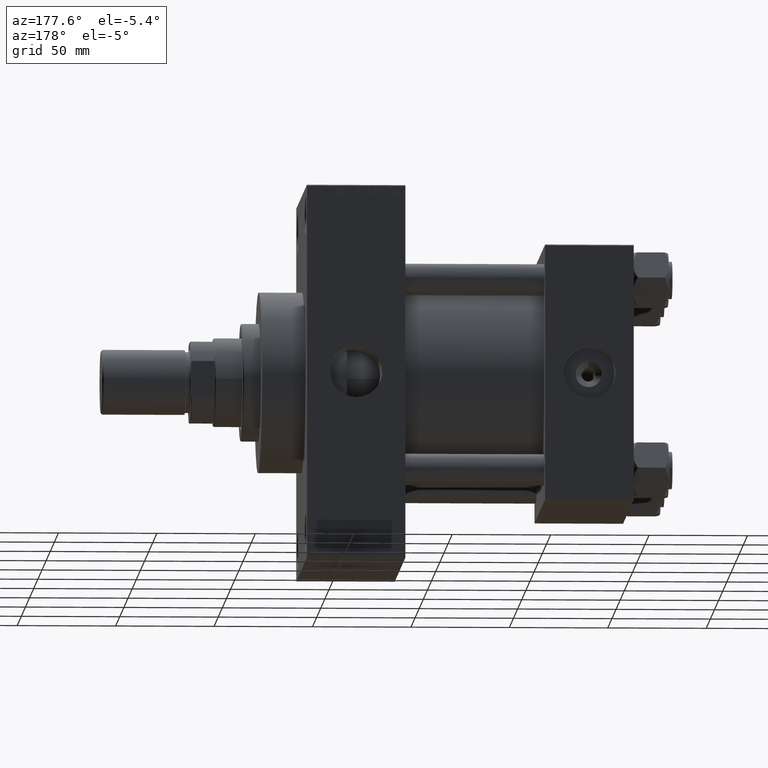
[diagram: clean part render]
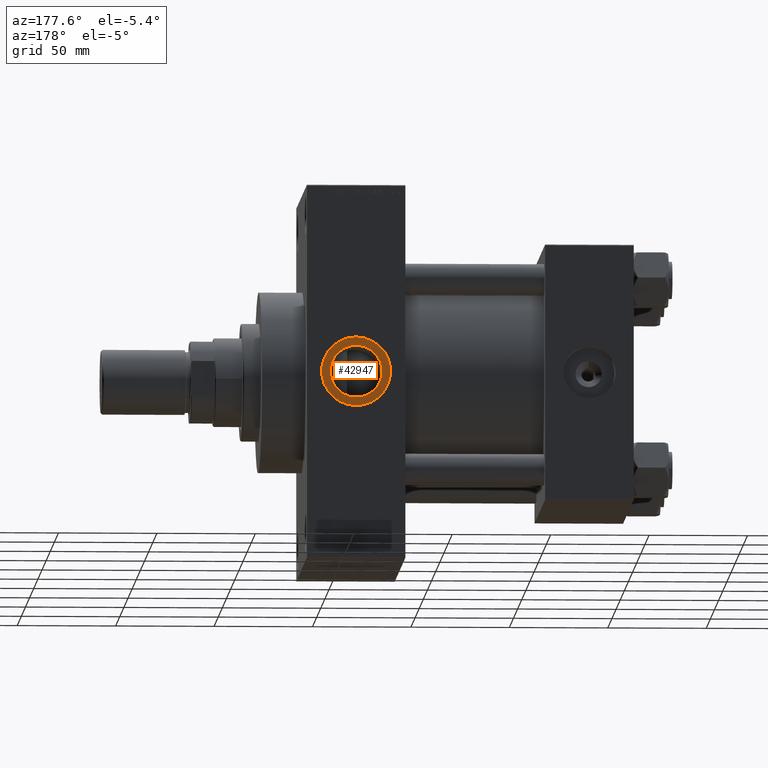
[diagram: same view with one face highlighted and labeled with its STEP entity id]
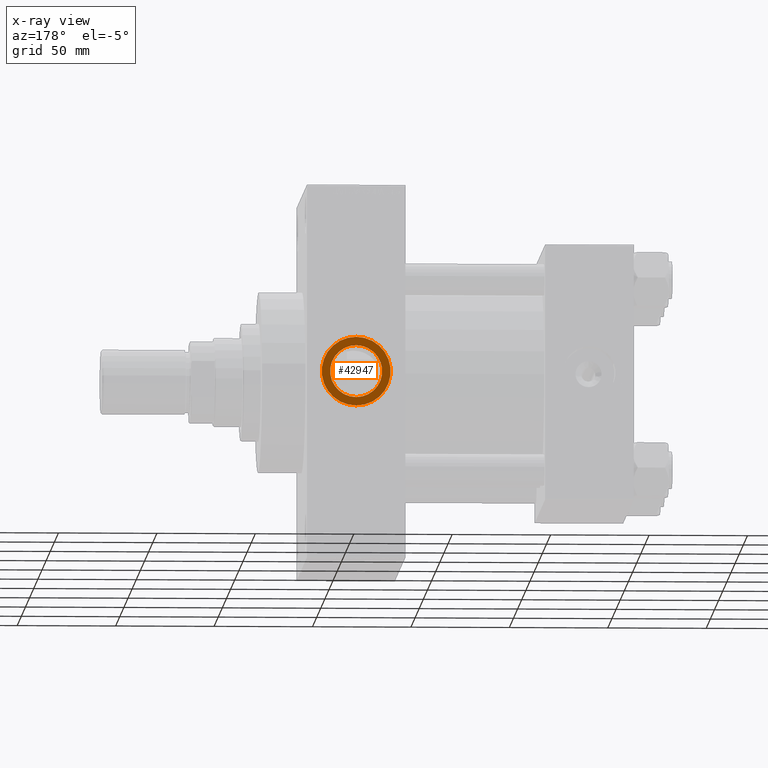
[diagram: x-ray of the same camera — body ghosted, the highlighted face saturated]
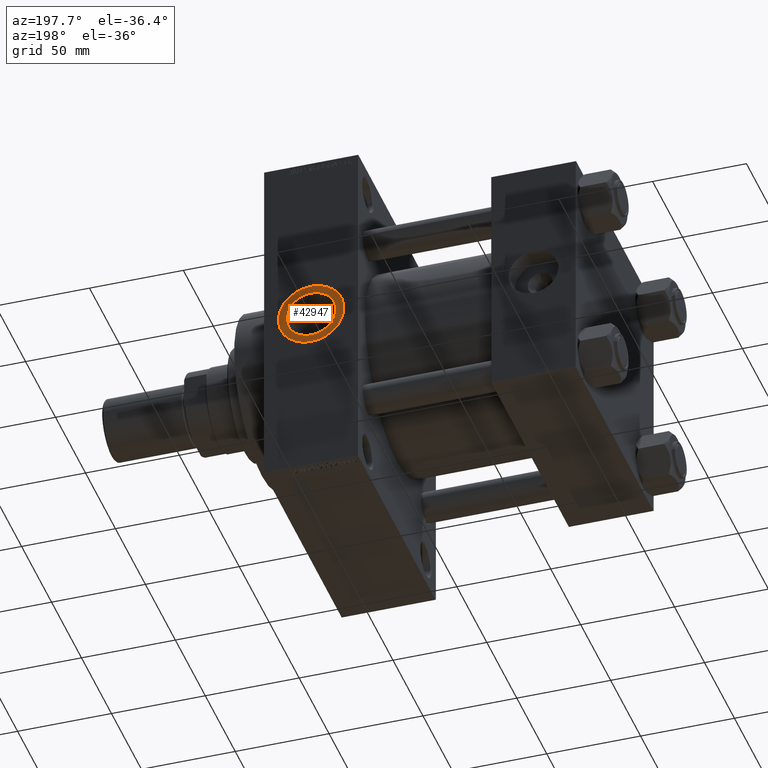
[diagram: same view with one face highlighted and labeled with its STEP entity id]
A machine part, auxiliary view. The second image highlights one B-rep face of the part: STEP entity #42947.
The next image is the same camera in x-ray: the body ghosted, the highlighted face saturated — about 0% of this face is hidden behind the body in this view.
A second angle (auxiliary view) of the same face is appended — the face is thin or edge-on in the first view.
In plain terms, the highlighted planar face has unit normal (0, 1, 0).
Its self-contained STEP definition (entity closure, byte-faithful):
#12 = DIRECTION ( 'NONE',  ( 0.000000000000000000, 0.000000000000000000, 1.000000000000000000 ) ) ;
#597 = DIRECTION ( 'NONE',  ( 0.000000000000000000, 1.000000000000000000, 0.000000000000000000 ) ) ;
#1042 = VERTEX_POINT ( 'NONE', #16623 ) ;
#1772 = PLANE ( 'NONE',  #17528 ) ;
#4819 = FACE_BOUND ( 'NONE', #14539, .T. ) ;
#5913 = CARTESIAN_POINT ( 'NONE',  ( 141.0000000000000000, 64.79999999999996874, 4.747664250041786301E-15 ) ) ;
#7474 = CARTESIAN_POINT ( 'NONE',  ( 141.0000000000000000, 64.79999999999996874, 4.747664250041786301E-15 ) ) ;
#8107 = VERTEX_POINT ( 'NONE', #35325 ) ;
#8881 = FACE_OUTER_BOUND ( 'NONE', #20720, .T. ) ;
#9408 = DIRECTION ( 'NONE',  ( 0.000000000000000000, 1.000000000000000000, 0.000000000000000000 ) ) ;
#10175 = DIRECTION ( 'NONE',  ( 0.000000000000000000, 0.000000000000000000, 1.000000000000000000 ) ) ;
#10549 = EDGE_CURVE ( 'NONE', #37953, #31400, #21595, .T. ) ;
#10667 = EDGE_CURVE ( 'NONE', #31400, #37953, #17564, .T. ) ;
#12863 = ORIENTED_EDGE ( 'NONE', *, *, #10667, .F. ) ;
#14539 = EDGE_LOOP ( 'NONE', ( #12863, #40482 ) ) ;
#14996 = DIRECTION ( 'NONE',  ( 0.000000000000000000, 0.000000000000000000, 1.000000000000000000 ) ) ;
#15152 = AXIS2_PLACEMENT_3D ( 'NONE', #49048, #29738, #14996 ) ;
#16071 = DIRECTION ( 'NONE',  ( 0.000000000000000000, 0.000000000000000000, 1.000000000000000000 ) ) ;
#16623 = CARTESIAN_POINT ( 'NONE',  ( 141.0000000000000000, 64.79999999999996874, -17.49999999999998934 ) ) ;
#17528 = AXIS2_PLACEMENT_3D ( 'NONE', #36078, #24131, #20066 ) ;
#17564 = CIRCLE ( 'NONE', #15152, 13.22000000000001307 ) ;
#18365 = AXIS2_PLACEMENT_3D ( 'NONE', #48799, #9408, #10175 ) ;
#20066 = DIRECTION ( 'NONE',  ( 0.000000000000000000, -0.000000000000000000, 1.000000000000000000 ) ) ;
#20720 = EDGE_LOOP ( 'NONE', ( #33961, #48350 ) ) ;
#21595 = CIRCLE ( 'NONE', #18365, 13.22000000000001307 ) ;
#24098 = DIRECTION ( 'NONE',  ( 0.000000000000000000, 1.000000000000000000, 0.000000000000000000 ) ) ;
#24131 = DIRECTION ( 'NONE',  ( 0.000000000000000000, 1.000000000000000000, 0.000000000000000000 ) ) ;
#26180 = AXIS2_PLACEMENT_3D ( 'NONE', #5913, #24098, #12 ) ;
#27770 = CIRCLE ( 'NONE', #36699, 17.49999999999999289 ) ;
#29738 = DIRECTION ( 'NONE',  ( 0.000000000000000000, 1.000000000000000000, 0.000000000000000000 ) ) ;
#30395 = EDGE_CURVE ( 'NONE', #1042, #8107, #27770, .T. ) ;
#31400 = VERTEX_POINT ( 'NONE', #33859 ) ;
#32058 = EDGE_CURVE ( 'NONE', #8107, #1042, #38391, .T. ) ;
#33859 = CARTESIAN_POINT ( 'NONE',  ( 141.0000000000000000, 64.79999999999996874, 13.22000000000001840 ) ) ;
#33961 = ORIENTED_EDGE ( 'NONE', *, *, #32058, .T. ) ;
#35325 = CARTESIAN_POINT ( 'NONE',  ( 141.0000000000000000, 64.79999999999996874, 17.49999999999999645 ) ) ;
#36078 = CARTESIAN_POINT ( 'NONE',  ( 141.0000000000000000, 64.79999999999996874, 4.747664250041786301E-15 ) ) ;
#36699 = AXIS2_PLACEMENT_3D ( 'NONE', #7474, #597, #16071 ) ;
#37953 = VERTEX_POINT ( 'NONE', #41139 ) ;
#38391 = CIRCLE ( 'NONE', #26180, 17.49999999999999289 ) ;
#40482 = ORIENTED_EDGE ( 'NONE', *, *, #10549, .F. ) ;
#41139 = CARTESIAN_POINT ( 'NONE',  ( 141.0000000000000000, 64.79999999999996874, -13.22000000000000774 ) ) ;
#42947 = ADVANCED_FACE ( 'NONE', ( #4819, #8881 ), #1772, .T. ) ;
#48350 = ORIENTED_EDGE ( 'NONE', *, *, #30395, .T. ) ;
#48799 = CARTESIAN_POINT ( 'NONE',  ( 141.0000000000000000, 64.79999999999996874, 4.747664250041786301E-15 ) ) ;
#49048 = CARTESIAN_POINT ( 'NONE',  ( 141.0000000000000000, 64.79999999999996874, 4.747664250041786301E-15 ) ) ;